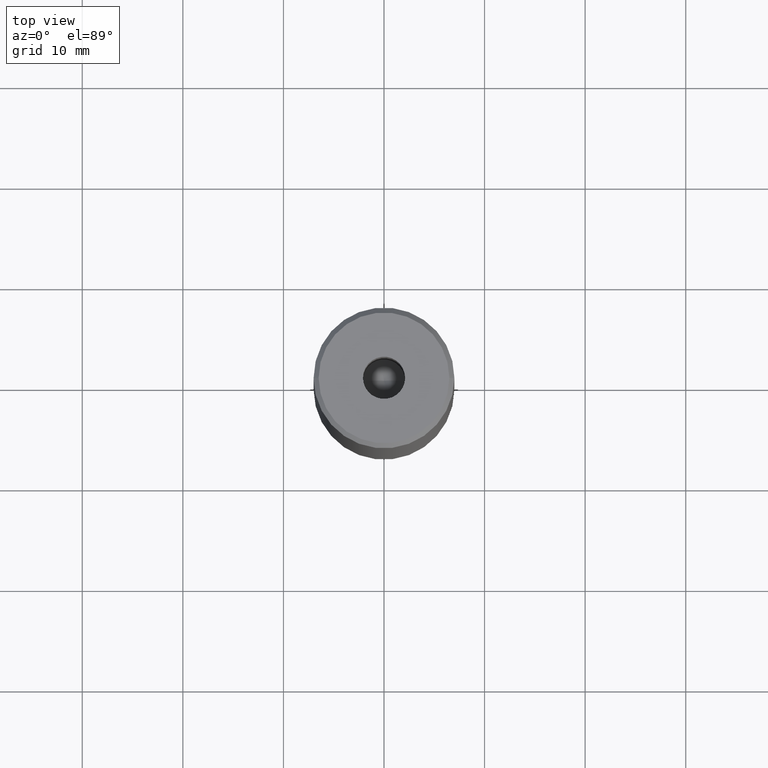
[diagram: clean part render]
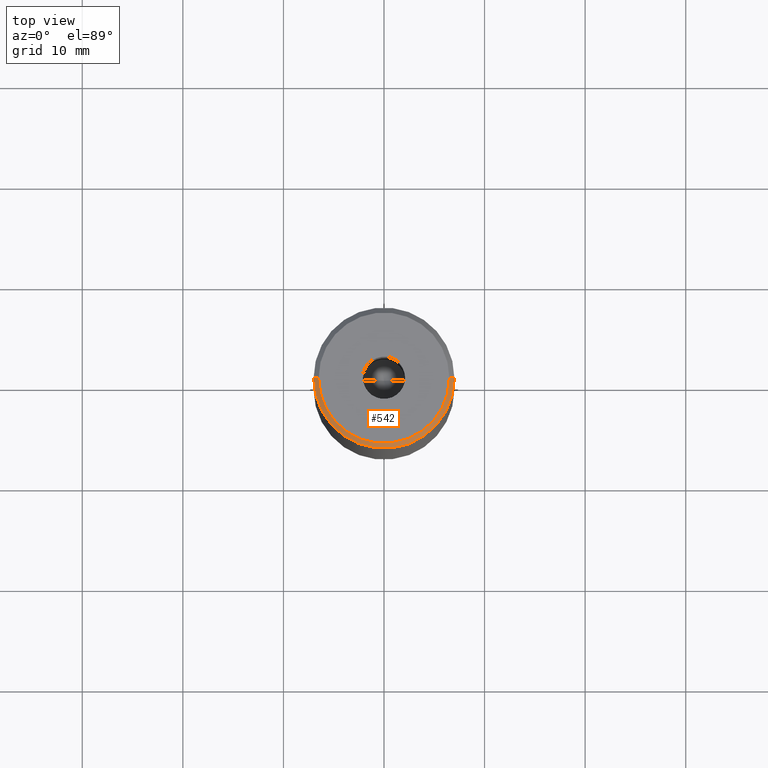
[diagram: same view with one face highlighted and labeled with its STEP entity id]
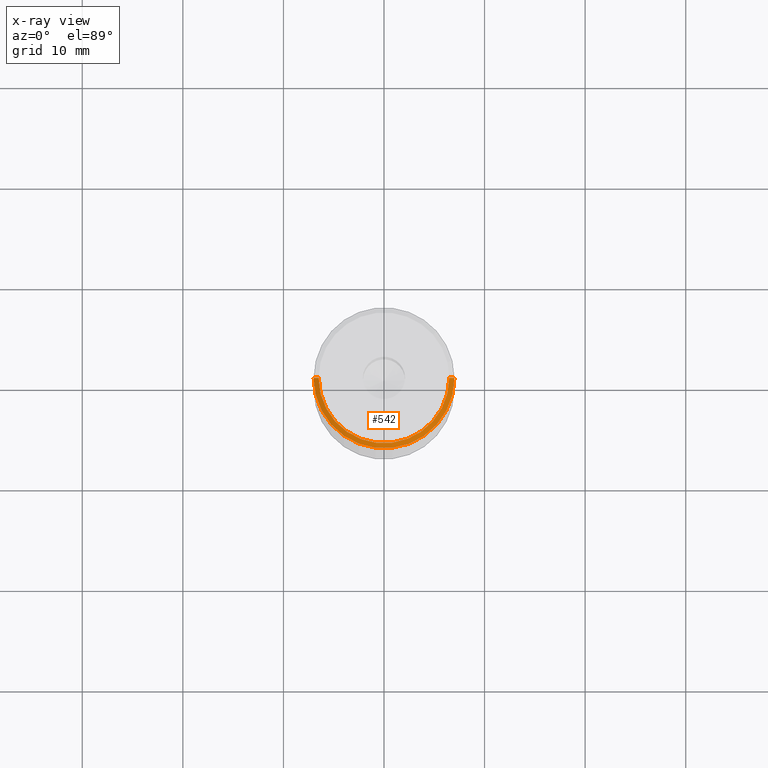
[diagram: x-ray of the same camera — body ghosted, the highlighted face saturated]
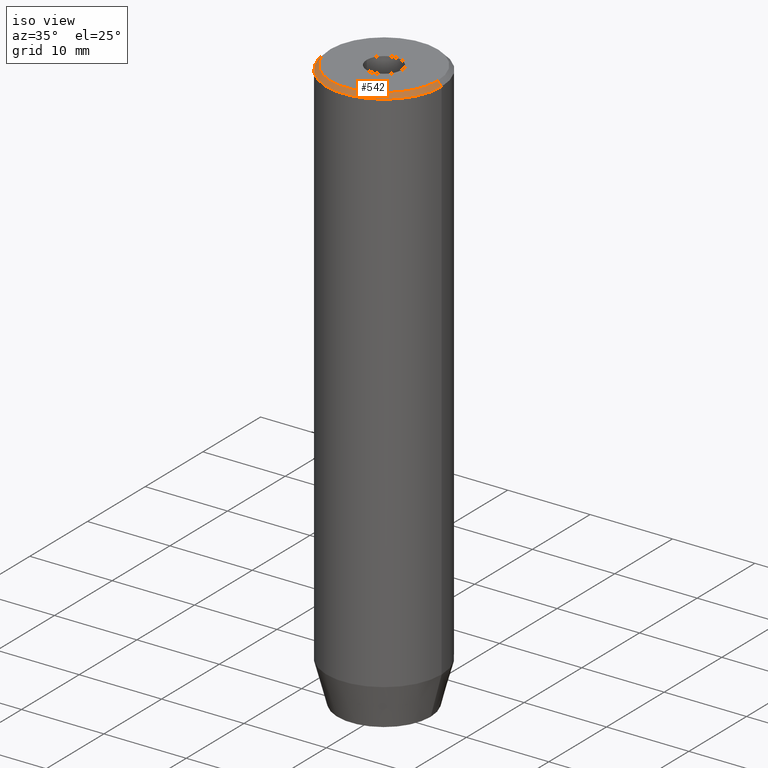
[diagram: same view with one face highlighted and labeled with its STEP entity id]
A machine part, top view. The second image highlights one B-rep face of the part: STEP entity #542.
The next image is the same camera in x-ray: the body ghosted, the highlighted face saturated — about 0% of this face is hidden behind the body in this view.
A second angle (iso view) of the same face is appended — the face is thin or edge-on in the first view.
In plain terms, the highlighted conical surface has half-angle 45 deg.
Its self-contained STEP definition (entity closure, byte-faithful):
#7 = CARTESIAN_POINT ( 'NONE',  ( -6.500000000000012434, 0.000000000000000000, 0.000000000000000000 ) ) ;
#27 = LINE ( 'NONE', #518, #205 ) ;
#42 = DIRECTION ( 'NONE',  ( 0.000000000000000000, 0.000000000000000000, -1.000000000000000000 ) ) ;
#52 = VERTEX_POINT ( 'NONE', #508 ) ;
#78 = CARTESIAN_POINT ( 'NONE',  ( -6.500000000000012434, 0.000000000000000000, 0.000000000000000000 ) ) ;
#92 = FACE_OUTER_BOUND ( 'NONE', #93, .T. ) ;
#93 = EDGE_LOOP ( 'NONE', ( #464, #284, #560, #338 ) ) ;
#106 = EDGE_CURVE ( 'NONE', #190, #403, #530, .T. ) ;
#125 = DIRECTION ( 'NONE',  ( 1.000000000000000000, 0.000000000000000000, 0.000000000000000000 ) ) ;
#130 = AXIS2_PLACEMENT_3D ( 'NONE', #302, #218, #125 ) ;
#160 = CONICAL_SURFACE ( 'NONE', #224, 6.500000000000012434, 0.7853981633974447263 ) ;
#179 = DIRECTION ( 'NONE',  ( 1.000000000000000000, 0.000000000000000000, 0.000000000000000000 ) ) ;
#190 = VERTEX_POINT ( 'NONE', #7 ) ;
#205 = VECTOR ( 'NONE', #483, 1000.000000000000114 ) ;
#218 = DIRECTION ( 'NONE',  ( -0.000000000000000000, -0.000000000000000000, 1.000000000000000000 ) ) ;
#224 = AXIS2_PLACEMENT_3D ( 'NONE', #488, #42, #446 ) ;
#232 = EDGE_CURVE ( 'NONE', #52, #234, #27, .T. ) ;
#234 = VERTEX_POINT ( 'NONE', #427 ) ;
#256 = EDGE_CURVE ( 'NONE', #190, #52, #261, .T. ) ;
#261 = CIRCLE ( 'NONE', #130, 6.500000000000012434 ) ;
#267 = CARTESIAN_POINT ( 'NONE',  ( 0.000000000000000000, 0.000000000000000000, -0.4999999999999908962 ) ) ;
#270 = CARTESIAN_POINT ( 'NONE',  ( -7.000000000000000000, 8.572527594031473190E-16, -0.4999999999999908962 ) ) ;
#284 = ORIENTED_EDGE ( 'NONE', *, *, #256, .F. ) ;
#289 = VECTOR ( 'NONE', #439, 1000.000000000000114 ) ;
#302 = CARTESIAN_POINT ( 'NONE',  ( 0.000000000000000000, 0.000000000000000000, 0.000000000000000000 ) ) ;
#338 = ORIENTED_EDGE ( 'NONE', *, *, #528, .F. ) ;
#357 = DIRECTION ( 'NONE',  ( 0.000000000000000000, 0.000000000000000000, -1.000000000000000000 ) ) ;
#372 = AXIS2_PLACEMENT_3D ( 'NONE', #267, #357, #179 ) ;
#403 = VERTEX_POINT ( 'NONE', #270 ) ;
#427 = CARTESIAN_POINT ( 'NONE',  ( 7.000000000000000000, 0.000000000000000000, -0.4999999999999908962 ) ) ;
#439 = DIRECTION ( 'NONE',  ( -0.7071067811865451302, 0.000000000000000000, -0.7071067811865500152 ) ) ;
#446 = DIRECTION ( 'NONE',  ( -1.000000000000000000, 0.000000000000000000, 0.000000000000000000 ) ) ;
#464 = ORIENTED_EDGE ( 'NONE', *, *, #232, .F. ) ;
#467 = CIRCLE ( 'NONE', #372, 7.000000000000000000 ) ;
#483 = DIRECTION ( 'NONE',  ( 0.7071067811865451302, 8.659560562354903276E-17, -0.7071067811865500152 ) ) ;
#488 = CARTESIAN_POINT ( 'NONE',  ( 0.000000000000000000, 0.000000000000000000, 0.000000000000000000 ) ) ;
#508 = CARTESIAN_POINT ( 'NONE',  ( 6.500000000000012434, 8.266365894244642222E-16, 0.000000000000000000 ) ) ;
#518 = CARTESIAN_POINT ( 'NONE',  ( 6.500000000000012434, 7.960204194457811254E-16, 0.000000000000000000 ) ) ;
#528 = EDGE_CURVE ( 'NONE', #234, #403, #467, .T. ) ;
#530 = LINE ( 'NONE', #78, #289 ) ;
#542 = ADVANCED_FACE ( 'NONE', ( #92 ), #160, .T. ) ;
#560 = ORIENTED_EDGE ( 'NONE', *, *, #106, .T. ) ;